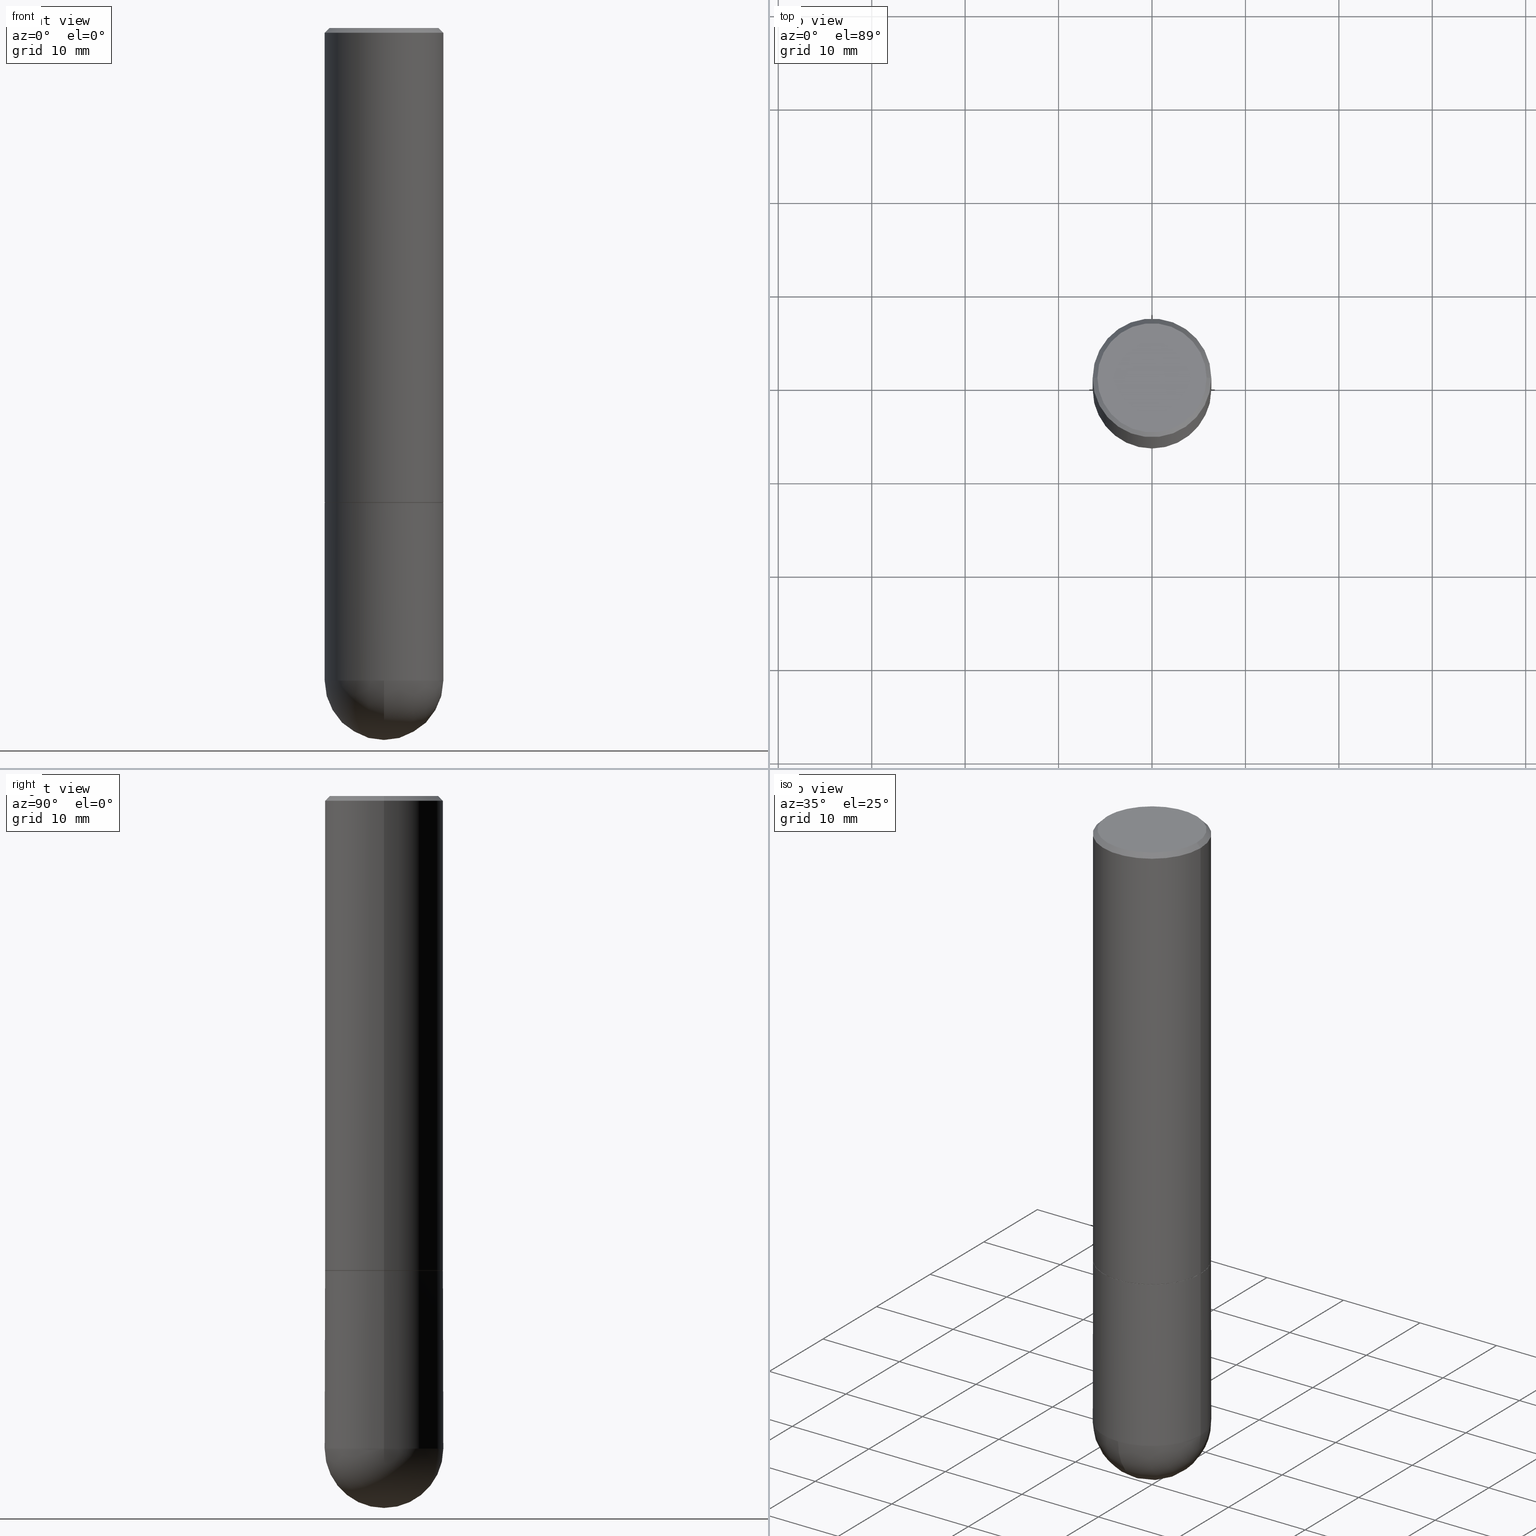
[diagram: canonical four-view strip — front | top / right | iso, engineering-drawing reading convention]
A machine part, canonical four-view strip (front | top / right | iso — engineering-drawing reading convention). The complete STEP part file that produces these views, byte-faithful:
ISO-10303-21;
HEADER;
FILE_DESCRIPTION (( 'STEP AP203' ),
    '1' );
FILE_NAME ('34979.STEP',
    '2024-02-21T18:38:55',
    ( '' ),
    ( '' ),
    'SwSTEP 2.0',
    'SolidWorks 2023',
    '' );
FILE_SCHEMA (( 'CONFIG_CONTROL_DESIGN' ));
ENDSEC;

DATA;
#1 = EDGE_CURVE ( 'NONE', #34, #349, #31, .T. ) ;
#2 = ORIENTED_EDGE ( 'NONE', *, *, #259, .T. ) ;
#3 = CIRCLE ( 'NONE', #155, 0.2500000000000000000 ) ;
#4 = DATE_AND_TIME ( #294, #26 ) ;
#5 = ORIENTED_EDGE ( 'NONE', *, *, #76, .F. ) ;
#6 = EDGE_LOOP ( 'NONE', ( #29, #325, #299, #410 ) ) ;
#7 = EDGE_CURVE ( 'NONE', #353, #130, #346, .T. ) ;
#8 = ORIENTED_EDGE ( 'NONE', *, *, #62, .T. ) ;
#9 = CARTESIAN_POINT ( 'NONE',  ( 6.725039217009124520E-29, -9.601573681818649859E-15, -2.750000000000000000 ) ) ;
#10 = ORIENTED_EDGE ( 'NONE', *, *, #87, .T. ) ;
#11 = DIRECTION ( 'NONE',  ( 1.000000000000000000, -6.982962677686262766E-15, 0.000000000000000000 ) ) ;
#12 = ORIENTED_EDGE ( 'NONE', *, *, #326, .F. ) ;
#13 = CARTESIAN_POINT ( 'NONE',  ( 0.000000000000000000, 0.000000000000000000, 0.000000000000000000 ) ) ;
#14 = AXIS2_PLACEMENT_3D ( 'NONE', #141, #172, #329 ) ;
#15 = CIRCLE ( 'NONE', #372, 0.2500000000000000000 ) ;
#16 = LINE ( 'NONE', #343, #46 ) ;
#17 =( CONVERSION_BASED_UNIT ( 'INCH', #212 ) LENGTH_UNIT ( ) NAMED_UNIT ( #295 ) );
#18 = LINE ( 'NONE', #401, #145 ) ;
#19 = DIRECTION ( 'NONE',  ( -2.445468806185136597E-29, 3.491481338843145583E-15, 1.000000000000000000 ) ) ;
#20 = PLANE ( 'NONE',  #394 ) ;
#21 = VECTOR ( 'NONE', #179, 39.37007874015748143 ) ;
#22 = DIRECTION ( 'NONE',  ( 1.000000000000000000, -6.982962677686267499E-15, 4.875813741439101456E-29 ) ) ;
#23 = CARTESIAN_POINT ( 'NONE',  ( 4.890937612370273194E-29, -6.982962677686291165E-15, -2.000000000000000000 ) ) ;
#24 = ORIENTED_EDGE ( 'NONE', *, *, #411, .F. ) ;
#25 = CIRCLE ( 'NONE', #266, 0.2500000000000002776 ) ;
#26 = LOCAL_TIME ( 13, 38, 55.00000000000000000, #122 ) ;
#27 = ORIENTED_EDGE ( 'NONE', *, *, #221, .F. ) ;
#28 = APPROVAL_STATUS ( 'not_yet_approved' ) ;
#29 = ORIENTED_EDGE ( 'NONE', *, *, #110, .T. ) ;
#30 = PRODUCT_RELATED_PRODUCT_CATEGORY ( 'detail', '', ( #369 ) ) ;
#31 = CIRCLE ( 'NONE', #393, 0.2500000000000000000 ) ;
#32 = ORIENTED_EDGE ( 'NONE', *, *, #301, .F. ) ;
#33 = ORIENTED_EDGE ( 'NONE', *, *, #323, .F. ) ;
#34 = VERTEX_POINT ( 'NONE', #387 ) ;
#35 = DIRECTION ( 'NONE',  ( -2.445468806185136597E-29, 3.491481338843145583E-15, 1.000000000000000000 ) ) ;
#36 = EDGE_LOOP ( 'NONE', ( #292, #101, #61, #307 ) ) ;
#37 = ADVANCED_FACE ( 'NONE', ( #99 ), #252, .T. ) ;
#38 = ORIENTED_EDGE ( 'NONE', *, *, #201, .F. ) ;
#39 = DIRECTION ( 'NONE',  ( -2.445468806185136597E-29, 3.491481338843145583E-15, 1.000000000000000000 ) ) ;
#40 = DIRECTION ( 'NONE',  ( -2.445468806185136597E-29, 3.491481338843145583E-15, 1.000000000000000000 ) ) ;
#41 = CARTESIAN_POINT ( 'NONE',  ( 0.2500000000000002776, -8.725211865769017202E-15, -1.999000000000000110 ) ) ;
#42 = FACE_OUTER_BOUND ( 'NONE', #64, .T. ) ;
#43 = CARTESIAN_POINT ( 'NONE',  ( -0.2299999999999999267, 1.640996229256272519E-15, 5.122214988119358314E-17 ) ) ;
#44 = DIRECTION ( 'NONE',  ( -0.7071067811867165487, 7.493145998870964739E-15, 0.7071067811863784858 ) ) ;
#45 = DIRECTION ( 'NONE',  ( 1.000000000000000000, -6.982962677686266711E-15, 4.876176775795935793E-29 ) ) ;
#46 = VECTOR ( 'NONE', #366, 39.37007874015748143 ) ;
#47 = APPROVAL_STATUS ( 'not_yet_approved' ) ;
#48 = CYLINDRICAL_SURFACE ( 'NONE', #275, 0.2500000000000001110 ) ;
#49 = ADVANCED_FACE ( 'NONE', ( #254 ), #375, .F. ) ;
#50 = CARTESIAN_POINT ( 'NONE',  ( 4.890937612370273194E-29, -6.982962677686291165E-15, -2.000000000000000000 ) ) ;
#51 = SPHERICAL_SURFACE ( 'NONE', #190, 0.2500000000000001110 ) ;
#52 = DIRECTION ( 'NONE',  ( 0.000000000000000000, 0.000000000000000000, 1.000000000000000000 ) ) ;
#53 = UNCERTAINTY_MEASURE_WITH_UNIT (LENGTH_MEASURE( 1.000000000000000082E-05 ), #17, 'distance_accuracy_value', 'NONE');
#54 = AXIS2_PLACEMENT_3D ( 'NONE', #304, #133, #268 ) ;
#55 = ORIENTED_EDGE ( 'NONE', *, *, #173, .F. ) ;
#56 = APPLICATION_PROTOCOL_DEFINITION ( 'international standard', 'config_control_design', 1994, #193 ) ;
#57 = VERTEX_POINT ( 'NONE', #273 ) ;
#58 = ORIENTED_EDGE ( 'NONE', *, *, #65, .T. ) ;
#59 = AXIS2_PLACEMENT_3D ( 'NONE', #308, #39, #11 ) ;
#60 = CC_DESIGN_APPROVAL ( #337, ( #384 ) ) ;
#61 = ORIENTED_EDGE ( 'NONE', *, *, #302, .T. ) ;
#62 = EDGE_CURVE ( 'NONE', #120, #309, #204, .T. ) ;
#63 = EDGE_LOOP ( 'NONE', ( #97, #5 ) ) ;
#64 = EDGE_LOOP ( 'NONE', ( #228, #168, #10, #159, #129 ) ) ;
#65 = EDGE_CURVE ( 'NONE', #121, #130, #125, .T. ) ;
#66 = AXIS2_PLACEMENT_3D ( 'NONE', #247, #77, #80 ) ;
#67 = VERTEX_POINT ( 'NONE', #135 ) ;
#68 = DIRECTION ( 'NONE',  ( 2.438088387897960049E-29, -3.491481338843145188E-15, -1.000000000000000000 ) ) ;
#69 = DIRECTION ( 'NONE',  ( -1.000000000000000000, 7.105427357601001070E-15, -4.926315508542082329E-29 ) ) ;
#70 = DIRECTION ( 'NONE',  ( -1.000000000000000000, 6.982962677686266711E-15, 0.000000000000000000 ) ) ;
#71 = DIRECTION ( 'NONE',  ( -2.445468806185136597E-29, 3.491481338843145583E-15, 1.000000000000000000 ) ) ;
#72 = CIRCLE ( 'NONE', #116, 0.2500000000000000000 ) ;
#73 = DIRECTION ( 'NONE',  ( 1.000000000000000000, -6.982962677686267499E-15, 4.876176775795936353E-29 ) ) ;
#74 = APPROVAL_PERSON_ORGANIZATION ( #158, #337, #300 ) ;
#75 = CARTESIAN_POINT ( 'NONE',  ( -0.2500000000000000000, -6.515911340352222020E-15, -2.750000000000000000 ) ) ;
#76 = EDGE_CURVE ( 'NONE', #57, #137, #132, .T. ) ;
#77 = DIRECTION ( 'NONE',  ( 2.445468806185136597E-29, -3.491481338843145583E-15, -1.000000000000000000 ) ) ;
#78 = FACE_OUTER_BOUND ( 'NONE', #6, .T. ) ;
#79 = EDGE_CURVE ( 'NONE', #67, #229, #239, .T. ) ;
#80 = DIRECTION ( 'NONE',  ( -1.000000000000000000, 6.982962677686266711E-15, 0.000000000000000000 ) ) ;
#81 = AXIS2_PLACEMENT_3D ( 'NONE', #371, #406, #316 ) ;
#82 = CC_DESIGN_APPROVAL ( #378, ( #142 ) ) ;
#83 = CARTESIAN_POINT ( 'NONE',  ( 0.000000000000000000, 0.000000000000000000, 0.000000000000000000 ) ) ;
#84 = CC_DESIGN_PERSON_AND_ORGANIZATION_ASSIGNMENT ( #203, #237, ( #384 ) ) ;
#85 = ORIENTED_EDGE ( 'NONE', *, *, #173, .T. ) ;
#86 = EDGE_CURVE ( 'NONE', #353, #231, #350, .T. ) ;
#87 = EDGE_CURVE ( 'NONE', #231, #121, #72, .T. ) ;
#88 = VECTOR ( 'NONE', #143, 39.37007874015748143 ) ;
#89 = CC_DESIGN_DATE_AND_TIME_ASSIGNMENT ( #258, #322, ( #142 ) ) ;
#90 = ORIENTED_EDGE ( 'NONE', *, *, #7, .T. ) ;
#91 = PERSON_AND_ORGANIZATION_ROLE ( 'design_owner' ) ;
#92 = ADVANCED_FACE ( 'NONE', ( #207 ), #176, .T. ) ;
#93 = ADVANCED_FACE ( 'NONE', ( #131 ), #386, .T. ) ;
#94 = EDGE_LOOP ( 'NONE', ( #352, #235, #8, #32 ) ) ;
#95 = AXIS2_PLACEMENT_3D ( 'NONE', #174, #68, #271 ) ;
#96 = AXIS2_PLACEMENT_3D ( 'NONE', #246, #367, #153 ) ;
#97 = ORIENTED_EDGE ( 'NONE', *, *, #259, .F. ) ;
#98 = DIRECTION ( 'NONE',  ( -2.445468806185136597E-29, 3.491481338843145583E-15, 1.000000000000000000 ) ) ;
#99 = FACE_OUTER_BOUND ( 'NONE', #391, .T. ) ;
#100 = PLANE ( 'NONE',  #281 ) ;
#101 = ORIENTED_EDGE ( 'NONE', *, *, #201, .T. ) ;
#102 = AXIS2_PLACEMENT_3D ( 'NONE', #23, #338, #152 ) ;
#103 = DIRECTION ( 'NONE',  ( 1.000000000000000000, -6.982962677686266711E-15, 4.876176775795935793E-29 ) ) ;
#104 = CARTESIAN_POINT ( 'NONE',  ( 0.2500000000000001110, -1.745740669421567664E-15, 1.219044193948984649E-29 ) ) ;
#105 = FACE_OUTER_BOUND ( 'NONE', #303, .T. ) ;
#106 = FACE_OUTER_BOUND ( 'NONE', #63, .T. ) ;
#107 = CARTESIAN_POINT ( 'NONE',  ( -0.2500000000000000000, 1.776356839400250465E-15, -1.229733772563726445E-29 ) ) ;
#108 = LOCAL_TIME ( 13, 38, 55.00000000000000000, #146 ) ;
#109 = CARTESIAN_POINT ( 'NONE',  ( 6.725039217009124520E-29, -9.601573681818649859E-15, -2.750000000000000000 ) ) ;
#110 = EDGE_CURVE ( 'NONE', #120, #67, #25, .T. ) ;
#111 = DIRECTION ( 'NONE',  ( -2.445468806185136877E-29, 3.491481338843145188E-15, 1.000000000000000000 ) ) ;
#112 = DIRECTION ( 'NONE',  ( -2.445468806185136597E-29, 3.491481338843145583E-15, 1.000000000000000000 ) ) ;
#113 = SPHERICAL_SURFACE ( 'NONE', #81, 0.2500000000000001110 ) ;
#114 = APPROVAL_DATE_TIME ( #298, #185 ) ;
#115 = DIRECTION ( 'NONE',  ( 1.000000000000000000, -6.982962677686266711E-15, 0.000000000000000000 ) ) ;
#116 = AXIS2_PLACEMENT_3D ( 'NONE', #9, #71, #354 ) ;
#117 =( NAMED_UNIT ( * ) PLANE_ANGLE_UNIT ( ) SI_UNIT ( $, .RADIAN. ) );
#118 = AXIS2_PLACEMENT_3D ( 'NONE', #148, #283, #215 ) ;
#119 = PERSON_AND_ORGANIZATION ( #381, #306 ) ;
#120 = VERTEX_POINT ( 'NONE', #41 ) ;
#121 = VERTEX_POINT ( 'NONE', #388 ) ;
#122 = COORDINATED_UNIVERSAL_TIME_OFFSET ( 5, 0, .BEHIND. ) ;
#123 = ORIENTED_EDGE ( 'NONE', *, *, #7, .F. ) ;
#124 = CALENDAR_DATE ( 2024, 21, 2 ) ;
#125 = CIRCLE ( 'NONE', #59, 0.2500000000000000000 ) ;
#126 = VECTOR ( 'NONE', #44, 39.37007874015748143 ) ;
#127 = APPROVAL_DATE_TIME ( #4, #337 ) ;
#128 = ADVANCED_FACE ( 'NONE', ( #361 ), #100, .F. ) ;
#129 = ORIENTED_EDGE ( 'NONE', *, *, #1, .F. ) ;
#130 = VERTEX_POINT ( 'NONE', #276 ) ;
#131 = FACE_OUTER_BOUND ( 'NONE', #166, .T. ) ;
#132 = CIRCLE ( 'NONE', #14, 0.2489999999999999991 ) ;
#133 = DIRECTION ( 'NONE',  ( 1.000000000000000000, -6.982962677686265922E-15, 4.883557194083112340E-29 ) ) ;
#134 = EDGE_LOOP ( 'NONE', ( #262, #171 ) ) ;
#135 = CARTESIAN_POINT ( 'NONE',  ( -0.2500000000000002220, -1.748293572161901516E-15, -1.999000000000000110 ) ) ;
#136 = ADVANCED_FACE ( 'NONE', ( #314 ), #51, .T. ) ;
#137 = VERTEX_POINT ( 'NONE', #403 ) ;
#138 = MANIFOLD_SOLID_BREP ( 'Body-Move/Copy2[2]', #243 ) ;
#139 = AXIS2_PLACEMENT_3D ( 'NONE', #233, #357, #70 ) ;
#140 = LOCAL_TIME ( 13, 38, 55.00000000000000000, #194 ) ;
#141 = CARTESIAN_POINT ( 'NONE',  ( 4.890937612370273194E-29, -6.982962677686291165E-15, -2.000000000000000000 ) ) ;
#142 = PRODUCT_DEFINITION ( 'UNKNOWN', '', #384, #250 ) ;
#143 = DIRECTION ( 'NONE',  ( -0.7071067811865466846, 2.468850131082247989E-15, -0.7071067811865483499 ) ) ;
#144 = CARTESIAN_POINT ( 'NONE',  ( 0.2299999999999999267, -1.681434332853598617E-15, 5.122214988121642930E-17 ) ) ;
#145 = VECTOR ( 'NONE', #111, 39.37007874015748143 ) ;
#146 = COORDINATED_UNIVERSAL_TIME_OFFSET ( 5, 0, .BEHIND. ) ;
#147 = CARTESIAN_POINT ( 'NONE',  ( 4.890937612370273194E-29, -6.982962677686291165E-15, -2.000000000000000000 ) ) ;
#148 = CARTESIAN_POINT ( 'NONE',  ( -1.252621697202263706E-45, 1.788411804456536750E-31, 5.122214988120493535E-17 ) ) ;
#149 = DIRECTION ( 'NONE',  ( -2.445468806185136597E-29, 3.491481338843145583E-15, 1.000000000000000000 ) ) ;
#150 = LINE ( 'NONE', #222, #126 ) ;
#151 = CC_DESIGN_PERSON_AND_ORGANIZATION_ASSIGNMENT ( #160, #165, ( #142 ) ) ;
#152 = DIRECTION ( 'NONE',  ( 1.000000000000000000, -6.982962677686266711E-15, 0.000000000000000000 ) ) ;
#153 = DIRECTION ( 'NONE',  ( 1.000000000000000000, -6.982962677686262766E-15, 0.000000000000000000 ) ) ;
#154 = CLOSED_SHELL ( 'NONE', ( #93, #136, #392, #49, #263 ) ) ;
#155 = AXIS2_PLACEMENT_3D ( 'NONE', #241, #245, #115 ) ;
#156 = ORIENTED_EDGE ( 'NONE', *, *, #76, .T. ) ;
#157 = VERTEX_POINT ( 'NONE', #43 ) ;
#158 = PERSON_AND_ORGANIZATION ( #381, #306 ) ;
#159 = ORIENTED_EDGE ( 'NONE', *, *, #170, .T. ) ;
#160 = PERSON_AND_ORGANIZATION ( #381, #306 ) ;
#161 = APPROVAL_DATE_TIME ( #261, #378 ) ;
#162 = AXIS2_PLACEMENT_3D ( 'NONE', #109, #249, #217 ) ;
#163 = COORDINATED_UNIVERSAL_TIME_OFFSET ( 5, 0, .BEHIND. ) ;
#164 = EDGE_LOOP ( 'NONE', ( #123, #348, #169, #33 ) ) ;
#165 = PERSON_AND_ORGANIZATION_ROLE ( 'creator' ) ;
#166 = EDGE_LOOP ( 'NONE', ( #408, #333, #27, #327, #58 ) ) ;
#167 = EDGE_CURVE ( 'NONE', #157, #229, #363, .T. ) ;
#168 = ORIENTED_EDGE ( 'NONE', *, *, #395, .T. ) ;
#169 = ORIENTED_EDGE ( 'NONE', *, *, #395, .F. ) ;
#170 = EDGE_CURVE ( 'NONE', #121, #349, #18, .T. ) ;
#171 = ORIENTED_EDGE ( 'NONE', *, *, #284, .T. ) ;
#172 = DIRECTION ( 'NONE',  ( -2.445468806185136597E-29, 3.491481338843145583E-15, 1.000000000000000000 ) ) ;
#173 = EDGE_CURVE ( 'NONE', #137, #120, #16, .T. ) ;
#174 = CARTESIAN_POINT ( 'NONE',  ( 1.745740669421615390E-15, 0.2499999999999930334, -2.000000000000000888 ) ) ;
#175 = EDGE_CURVE ( 'NONE', #328, #34, #397, .T. ) ;
#176 = CONICAL_SURFACE ( 'NONE', #400, 0.2489999999999999991, 0.7853981633976873100 ) ;
#177 = LOCAL_TIME ( 13, 38, 55.00000000000000000, #191 ) ;
#178 = CARTESIAN_POINT ( 'NONE',  ( 0.000000000000000000, 0.000000000000000000, 0.000000000000000000 ) ) ;
#179 = DIRECTION ( 'NONE',  ( 0.7071067811865466846, -7.319954787623252890E-15, -0.7071067811865483499 ) ) ;
#180 = FACE_OUTER_BOUND ( 'NONE', #223, .T. ) ;
#181 = AXIS2_PLACEMENT_3D ( 'NONE', #147, #405, #187 ) ;
#182 = SECURITY_CLASSIFICATION_LEVEL ( 'unclassified' ) ;
#183 = CARTESIAN_POINT ( 'NONE',  ( -1.252621697202263706E-45, 1.788411804456536750E-31, 5.122214988120493535E-17 ) ) ;
#184 = CIRCLE ( 'NONE', #118, 0.2299999999999999267 ) ;
#185 = APPROVAL ( #47, 'UNSPECIFIED' ) ;
#186 = DIRECTION ( 'NONE',  ( -2.438088387897960049E-29, 3.491481338843145188E-15, 1.000000000000000000 ) ) ;
#187 = DIRECTION ( 'NONE',  ( 1.000000000000000000, -6.982962677686266711E-15, 0.000000000000000000 ) ) ;
#188 = ADVANCED_FACE ( 'NONE', ( #78 ), #373, .T. ) ;
#189 = DIRECTION ( 'NONE',  ( 6.982962677686265922E-15, 1.000000000000000000, -4.370956789862818783E-15 ) ) ;
#190 = AXIS2_PLACEMENT_3D ( 'NONE', #282, #278, #189 ) ;
#191 = COORDINATED_UNIVERSAL_TIME_OFFSET ( 5, 0, .BEHIND. ) ;
#192 = AXIS2_PLACEMENT_3D ( 'NONE', #83, #19, #45 ) ;
#193 = APPLICATION_CONTEXT ( 'configuration controlled 3d designs of mechanical parts and assemblies' ) ;
#194 = COORDINATED_UNIVERSAL_TIME_OFFSET ( 5, 0, .BEHIND. ) ;
#195 = APPLICATION_PROTOCOL_DEFINITION ( 'international standard', 'config_control_design', 1994, #359 ) ;
#196 = VECTOR ( 'NONE', #199, 39.37007874015748143 ) ;
#197 = VERTEX_POINT ( 'NONE', #144 ) ;
#198 = EDGE_LOOP ( 'NONE', ( #272, #257 ) ) ;
#199 = DIRECTION ( 'NONE',  ( -2.445468806185136877E-29, 3.491481338843145188E-15, 1.000000000000000000 ) ) ;
#200 = ORIENTED_EDGE ( 'NONE', *, *, #65, .F. ) ;
#201 = EDGE_CURVE ( 'NONE', #197, #309, #370, .T. ) ;
#202 = ORIENTED_EDGE ( 'NONE', *, *, #326, .T. ) ;
#203 = PERSON_AND_ORGANIZATION ( #381, #306 ) ;
#204 = LINE ( 'NONE', #104, #196 ) ;
#205 = ADVANCED_FACE ( 'NONE', ( #105 ), #358, .T. ) ;
#206 = CARTESIAN_POINT ( 'NONE',  ( 4.890937612370273194E-29, -6.982962677686291165E-15, -2.000000000000000000 ) ) ;
#207 = FACE_OUTER_BOUND ( 'NONE', #321, .T. ) ;
#208 = CC_DESIGN_PERSON_AND_ORGANIZATION_ASSIGNMENT ( #277, #339, ( #384 ) ) ;
#209 = CC_DESIGN_SECURITY_CLASSIFICATION ( #312, ( #384 ) ) ;
#210 = CALENDAR_DATE ( 2024, 21, 2 ) ;
#211 = DIRECTION ( 'NONE',  ( -2.445468806185136597E-29, 3.491481338843145583E-15, 1.000000000000000000 ) ) ;
#212 = LENGTH_MEASURE_WITH_UNIT ( LENGTH_MEASURE( 0.02539999999999999897 ), #313 );
#213 = ADVANCED_FACE ( 'NONE', ( #320 ), #274, .T. ) ;
#214 = CARTESIAN_POINT ( 'NONE',  ( -0.2500000000000000000, 1.675911042644703577E-15, -0.02000000000000005593 ) ) ;
#215 = DIRECTION ( 'NONE',  ( 1.000000000000000000, -6.982962677686267499E-15, 4.875813741439101456E-29 ) ) ;
#216 = CARTESIAN_POINT ( 'NONE',  ( 0.000000000000000000, 0.000000000000000000, 0.000000000000000000 ) ) ;
#217 = DIRECTION ( 'NONE',  ( 1.000000000000000000, -6.982962677686262766E-15, 0.000000000000000000 ) ) ;
#218 =( GEOMETRIC_REPRESENTATION_CONTEXT ( 3 ) GLOBAL_UNCERTAINTY_ASSIGNED_CONTEXT ( ( #53 ) ) GLOBAL_UNIT_ASSIGNED_CONTEXT ( ( #17, #117, #374 ) ) REPRESENTATION_CONTEXT ( 'NONE', 'WORKASPACE' ) );
#219 = PRODUCT_DEFINITION_SHAPE ( 'NONE', 'NONE',  #142 ) ;
#220 = DIRECTION ( 'NONE',  ( -2.445468806185136597E-29, 3.491481338843145583E-15, 1.000000000000000000 ) ) ;
#221 = EDGE_CURVE ( 'NONE', #349, #34, #3, .T. ) ;
#222 = CARTESIAN_POINT ( 'NONE',  ( -0.2489999999999999991, -5.213711265643641709E-15, -2.000000000000000000 ) ) ;
#223 = EDGE_LOOP ( 'NONE', ( #330, #90, #200, #380 ) ) ;
#224 = MECHANICAL_CONTEXT ( 'NONE', #359, 'mechanical' ) ;
#225 = CARTESIAN_POINT ( 'NONE',  ( 0.000000000000000000, 0.000000000000000000, 0.000000000000000000 ) ) ;
#226 = APPROVAL_PERSON_ORGANIZATION ( #402, #185, #319 ) ;
#227 = ORIENTED_EDGE ( 'NONE', *, *, #382, .F. ) ;
#228 = ORIENTED_EDGE ( 'NONE', *, *, #175, .F. ) ;
#229 = VERTEX_POINT ( 'NONE', #214 ) ;
#230 = AXIS2_PLACEMENT_3D ( 'NONE', #183, #318, #22 ) ;
#231 = VERTEX_POINT ( 'NONE', #340 ) ;
#232 = CARTESIAN_POINT ( 'NONE',  ( 1.606081415867840870E-15, 0.2299999999999999267, -7.774296329933208332E-16 ) ) ;
#233 = CARTESIAN_POINT ( 'NONE',  ( 4.890937612370287172E-31, -6.982962677686310098E-17, -0.02000000000000005593 ) ) ;
#234 = DIRECTION ( 'NONE',  ( 2.438088387897960049E-29, -3.491481338843145188E-15, -1.000000000000000000 ) ) ;
#235 = ORIENTED_EDGE ( 'NONE', *, *, #382, .T. ) ;
#236 = LOCAL_TIME ( 13, 38, 55.00000000000000000, #163 ) ;
#237 = PERSON_AND_ORGANIZATION_ROLE ( 'creator' ) ;
#238 = CARTESIAN_POINT ( 'NONE',  ( 4.888492143564088712E-29, -6.979471196347448158E-15, -1.999000000000000110 ) ) ;
#239 = LINE ( 'NONE', #331, #336 ) ;
#240 = PERSON_AND_ORGANIZATION_ROLE ( 'classification_officer' ) ;
#241 = CARTESIAN_POINT ( 'NONE',  ( 4.890937612370273754E-29, -6.982962677686291954E-15, -2.000000000000000444 ) ) ;
#242 = DIRECTION ( 'NONE',  ( 1.000000000000000000, -6.982962677686265922E-15, 4.876176775795935793E-29 ) ) ;
#243 = CLOSED_SHELL ( 'NONE', ( #205, #188, #213, #37, #251, #92, #347, #128 ) ) ;
#244 = CIRCLE ( 'NONE', #230, 0.2299999999999999267 ) ;
#245 = DIRECTION ( 'NONE',  ( -2.445468806185136597E-29, 3.491481338843145583E-15, 1.000000000000000000 ) ) ;
#246 = CARTESIAN_POINT ( 'NONE',  ( 6.725039217009124520E-29, -9.601573681818649859E-15, -2.750000000000000000 ) ) ;
#247 = CARTESIAN_POINT ( 'NONE',  ( 4.890937612370287172E-31, -6.982962677686310098E-17, -0.02000000000000005593 ) ) ;
#248 = CARTESIAN_POINT ( 'NONE',  ( 4.890937612370287172E-31, -6.982962677686310098E-17, -0.02000000000000005593 ) ) ;
#249 = DIRECTION ( 'NONE',  ( -2.445468806185136597E-29, 3.491481338843145583E-15, 1.000000000000000000 ) ) ;
#250 = DESIGN_CONTEXT ( 'detailed design', #193, 'design' ) ;
#251 = ADVANCED_FACE ( 'NONE', ( #368 ), #48, .T. ) ;
#252 = CONICAL_SURFACE ( 'NONE', #139, 0.2500000000000000000, 0.7853981633974471688 ) ;
#253 = CARTESIAN_POINT ( 'NONE',  ( 4.890937612370287172E-31, -6.982962677686310098E-17, -0.02000000000000005593 ) ) ;
#254 = FACE_OUTER_BOUND ( 'NONE', #198, .T. ) ;
#255 = CALENDAR_DATE ( 2024, 21, 2 ) ;
#256 = AXIS2_PLACEMENT_3D ( 'NONE', #178, #112, #73 ) ;
#257 = ORIENTED_EDGE ( 'NONE', *, *, #1, .T. ) ;
#258 = DATE_AND_TIME ( #296, #177 ) ;
#259 = EDGE_CURVE ( 'NONE', #137, #57, #342, .T. ) ;
#260 = CC_DESIGN_PERSON_AND_ORGANIZATION_ASSIGNMENT ( #396, #240, ( #312 ) ) ;
#261 = DATE_AND_TIME ( #124, #140 ) ;
#262 = ORIENTED_EDGE ( 'NONE', *, *, #411, .T. ) ;
#263 = ADVANCED_FACE ( 'NONE', ( #42 ), #315, .T. ) ;
#264 = ORIENTED_EDGE ( 'NONE', *, *, #110, .F. ) ;
#265 = DIRECTION ( 'NONE',  ( -2.445468806185136877E-29, 3.491481338843145188E-15, 1.000000000000000000 ) ) ;
#266 = AXIS2_PLACEMENT_3D ( 'NONE', #238, #40, #335 ) ;
#267 = AXIS2_PLACEMENT_3D ( 'NONE', #398, #364, #404 ) ;
#268 = DIRECTION ( 'NONE',  ( 6.982962677686266711E-15, 1.000000000000000000, 0.000000000000000000 ) ) ;
#269 = DIRECTION ( 'NONE',  ( 1.000000000000000000, -6.982962677686266711E-15, 0.000000000000000000 ) ) ;
#270 = CARTESIAN_POINT ( 'NONE',  ( 4.890937612370273754E-29, -6.982962677686291954E-15, -2.000000000000000444 ) ) ;
#271 = DIRECTION ( 'NONE',  ( -1.000000000000000000, 6.982962677686265922E-15, -4.876176775795935793E-29 ) ) ;
#272 = ORIENTED_EDGE ( 'NONE', *, *, #221, .T. ) ;
#273 = CARTESIAN_POINT ( 'NONE',  ( -0.2489999999999999991, -5.208412811295418518E-15, -2.000000000000000000 ) ) ;
#274 = CONICAL_SURFACE ( 'NONE', #66, 0.2500000000000000000, 0.7853981633974471688 ) ;
#275 = AXIS2_PLACEMENT_3D ( 'NONE', #216, #211, #341 ) ;
#276 = CARTESIAN_POINT ( 'NONE',  ( 1.745740669421632745E-15, 0.2499999999999902300, -2.750000000000000888 ) ) ;
#277 = PERSON_AND_ORGANIZATION ( #381, #306 ) ;
#278 = DIRECTION ( 'NONE',  ( -1.000000000000000000, 6.982962677686265922E-15, -4.883557194083113462E-29 ) ) ;
#279 = DATE_TIME_ROLE ( 'classification_date' ) ;
#280 = CARTESIAN_POINT ( 'NONE',  ( 0.2500000000000000000, -1.784954126219746189E-15, -0.02000000000000005593 ) ) ;
#281 = AXIS2_PLACEMENT_3D ( 'NONE', #232, #234, #311 ) ;
#282 = CARTESIAN_POINT ( 'NONE',  ( 6.393919439095240515E-29, -1.007575604995870173E-14, -2.750000000000000444 ) ) ;
#283 = DIRECTION ( 'NONE',  ( -2.445468806185136597E-29, 3.491481338843145583E-15, 1.000000000000000000 ) ) ;
#284 = EDGE_CURVE ( 'NONE', #197, #157, #244, .T. ) ;
#285 = DIRECTION ( 'NONE',  ( 1.000000000000000000, -6.982962677686266711E-15, 0.000000000000000000 ) ) ;
#286 = CARTESIAN_POINT ( 'NONE',  ( 7.015976219256266741E-29, -1.093331829968014633E-14, -3.000000000000000888 ) ) ;
#287 = MANIFOLD_SOLID_BREP ( 'Body-Move/Copy2[1]', #154 ) ;
#288 = DIRECTION ( 'NONE',  ( -2.445468806185136877E-29, 3.491481338843145188E-15, 1.000000000000000000 ) ) ;
#289 = CC_DESIGN_PERSON_AND_ORGANIZATION_ASSIGNMENT ( #409, #91, ( #369 ) ) ;
#290 = CIRCLE ( 'NONE', #96, 0.2500000000000000000 ) ;
#291 = DIRECTION ( 'NONE',  ( 1.000000000000000000, 0.000000000000000000, 0.000000000000000000 ) ) ;
#292 = ORIENTED_EDGE ( 'NONE', *, *, #284, .F. ) ;
#293 = ORIENTED_EDGE ( 'NONE', *, *, #301, .T. ) ;
#294 = CALENDAR_DATE ( 2024, 21, 2 ) ;
#295 = DIMENSIONAL_EXPONENTS ( 1.000000000000000000, 0.000000000000000000, 0.000000000000000000, 0.000000000000000000, 0.000000000000000000, 0.000000000000000000, 0.000000000000000000 ) ;
#296 = CALENDAR_DATE ( 2024, 21, 2 ) ;
#297 = CIRCLE ( 'NONE', #332, 0.2500000000000000000 ) ;
#298 = DATE_AND_TIME ( #255, #236 ) ;
#299 = ORIENTED_EDGE ( 'NONE', *, *, #302, .F. ) ;
#300 = APPROVAL_ROLE ( '' ) ;
#301 = EDGE_CURVE ( 'NONE', #229, #309, #15, .T. ) ;
#302 = EDGE_CURVE ( 'NONE', #309, #229, #297, .T. ) ;
#303 = EDGE_LOOP ( 'NONE', ( #2, #202, #264, #55 ) ) ;
#304 = CARTESIAN_POINT ( 'NONE',  ( 6.393919439095240515E-29, -1.007575604995870173E-14, -2.750000000000000444 ) ) ;
#305 = AXIS2_PLACEMENT_3D ( 'NONE', #13, #98, #103 ) ;
#306 = ORGANIZATION ( 'UNSPECIFIED', 'UNSPECIFIED', '' ) ;
#307 = ORIENTED_EDGE ( 'NONE', *, *, #167, .F. ) ;
#308 = CARTESIAN_POINT ( 'NONE',  ( 6.725039217009124520E-29, -9.601573681818649859E-15, -2.750000000000000000 ) ) ;
#309 = VERTEX_POINT ( 'NONE', #390 ) ;
#310 = DIRECTION ( 'NONE',  ( -7.105427357601001859E-15, -1.000000000000000000, 0.000000000000000000 ) ) ;
#311 = DIRECTION ( 'NONE',  ( -1.000000000000000000, 6.982962677686265922E-15, -4.876176775795935793E-29 ) ) ;
#312 = SECURITY_CLASSIFICATION ( '', '', #182 ) ;
#313 =( LENGTH_UNIT ( ) NAMED_UNIT ( * ) SI_UNIT ( $, .METRE. ) );
#314 = FACE_OUTER_BOUND ( 'NONE', #164, .T. ) ;
#315 = CYLINDRICAL_SURFACE ( 'NONE', #192, 0.2500000000000000000 ) ;
#316 = DIRECTION ( 'NONE',  ( 6.982962677686265922E-15, 1.000000000000000000, -4.370956789862818783E-15 ) ) ;
#317 = DATE_AND_TIME ( #210, #108 ) ;
#318 = DIRECTION ( 'NONE',  ( -2.445468806185136597E-29, 3.491481338843145583E-15, 1.000000000000000000 ) ) ;
#319 = APPROVAL_ROLE ( '' ) ;
#320 = FACE_OUTER_BOUND ( 'NONE', #36, .T. ) ;
#321 = EDGE_LOOP ( 'NONE', ( #12, #156, #85, #227 ) ) ;
#322 = DATE_TIME_ROLE ( 'creation_date' ) ;
#323 = EDGE_CURVE ( 'NONE', #130, #328, #365, .T. ) ;
#324 = APPROVAL_PERSON_ORGANIZATION ( #119, #378, #377 ) ;
#325 = ORIENTED_EDGE ( 'NONE', *, *, #79, .T. ) ;
#326 = EDGE_CURVE ( 'NONE', #57, #67, #150, .T. ) ;
#327 = ORIENTED_EDGE ( 'NONE', *, *, #170, .F. ) ;
#328 = VERTEX_POINT ( 'NONE', #75 ) ;
#329 = DIRECTION ( 'NONE',  ( 1.000000000000000000, -6.982962677686266711E-15, 0.000000000000000000 ) ) ;
#330 = ORIENTED_EDGE ( 'NONE', *, *, #86, .F. ) ;
#331 = CARTESIAN_POINT ( 'NONE',  ( -0.2500000000000001110, 1.776356839400251254E-15, -1.229733772563727146E-29 ) ) ;
#332 = AXIS2_PLACEMENT_3D ( 'NONE', #248, #220, #344 ) ;
#333 = ORIENTED_EDGE ( 'NONE', *, *, #175, .T. ) ;
#334 = ADVANCED_BREP_SHAPE_REPRESENTATION ( '34979', ( #287, #138, #351 ), #218 ) ;
#335 = DIRECTION ( 'NONE',  ( 1.000000000000000000, -6.982962677686266711E-15, 0.000000000000000000 ) ) ;
#336 = VECTOR ( 'NONE', #265, 39.37007874015748143 ) ;
#337 = APPROVAL ( #412, 'UNSPECIFIED' ) ;
#338 = DIRECTION ( 'NONE',  ( -2.445468806185136597E-29, 3.491481338843145583E-15, 1.000000000000000000 ) ) ;
#339 = PERSON_AND_ORGANIZATION_ROLE ( 'design_supplier' ) ;
#340 = CARTESIAN_POINT ( 'NONE',  ( -1.776356839400184989E-15, -0.2500000000000098810, -2.749999999999998668 ) ) ;
#341 = DIRECTION ( 'NONE',  ( 1.000000000000000000, -6.982962677686267499E-15, 4.876176775795936353E-29 ) ) ;
#342 = CIRCLE ( 'NONE', #102, 0.2489999999999999991 ) ;
#343 = CARTESIAN_POINT ( 'NONE',  ( 0.2489999999999999991, -8.721720384430171040E-15, -2.000000000000000000 ) ) ;
#344 = DIRECTION ( 'NONE',  ( 1.000000000000000000, -6.982962677686266711E-15, 0.000000000000000000 ) ) ;
#345 = CARTESIAN_POINT ( 'NONE',  ( 0.2500000000000000000, -8.728703347107858632E-15, -2.000000000000000444 ) ) ;
#346 = CIRCLE ( 'NONE', #54, 0.2500000000000001110 ) ;
#347 = ADVANCED_FACE ( 'NONE', ( #106 ), #20, .F. ) ;
#348 = ORIENTED_EDGE ( 'NONE', *, *, #86, .T. ) ;
#349 = VERTEX_POINT ( 'NONE', #345 ) ;
#350 = CIRCLE ( 'NONE', #383, 0.2500000000000001110 ) ;
#351 = AXIS2_PLACEMENT_3D ( 'NONE', #225, #52, #291 ) ;
#352 = ORIENTED_EDGE ( 'NONE', *, *, #79, .F. ) ;
#353 = VERTEX_POINT ( 'NONE', #286 ) ;
#354 = DIRECTION ( 'NONE',  ( 1.000000000000000000, -6.982962677686262766E-15, 0.000000000000000000 ) ) ;
#355 = DIRECTION ( 'NONE',  ( -2.445468806185136597E-29, 3.491481338843145583E-15, 1.000000000000000000 ) ) ;
#356 = CC_DESIGN_DATE_AND_TIME_ASSIGNMENT ( #317, #279, ( #312 ) ) ;
#357 = DIRECTION ( 'NONE',  ( 2.445468806185136597E-29, -3.491481338843145583E-15, -1.000000000000000000 ) ) ;
#358 = CONICAL_SURFACE ( 'NONE', #181, 0.2489999999999999991, 0.7853981633976873100 ) ;
#359 = APPLICATION_CONTEXT ( 'configuration controlled 3d designs of mechanical parts and assemblies' ) ;
#360 = CIRCLE ( 'NONE', #267, 0.2500000000000002776 ) ;
#361 = FACE_OUTER_BOUND ( 'NONE', #134, .T. ) ;
#362 = CARTESIAN_POINT ( 'NONE',  ( 6.393919439095240515E-29, -1.007575604995870173E-14, -2.750000000000000444 ) ) ;
#363 = LINE ( 'NONE', #399, #88 ) ;
#364 = DIRECTION ( 'NONE',  ( -2.445468806185136597E-29, 3.491481338843145583E-15, 1.000000000000000000 ) ) ;
#365 = CIRCLE ( 'NONE', #162, 0.2500000000000000000 ) ;
#366 = DIRECTION ( 'NONE',  ( 0.7071067811867165487, -2.468850131084027659E-15, 0.7071067811863784858 ) ) ;
#367 = DIRECTION ( 'NONE',  ( -2.445468806185136597E-29, 3.491481338843145583E-15, 1.000000000000000000 ) ) ;
#368 = FACE_OUTER_BOUND ( 'NONE', #94, .T. ) ;
#369 = PRODUCT ( '34979', '34979', '', ( #224 ) ) ;
#370 = LINE ( 'NONE', #280, #21 ) ;
#371 = CARTESIAN_POINT ( 'NONE',  ( 6.393919439095240515E-29, -1.007575604995870173E-14, -2.750000000000000444 ) ) ;
#372 = AXIS2_PLACEMENT_3D ( 'NONE', #253, #149, #285 ) ;
#373 = CYLINDRICAL_SURFACE ( 'NONE', #256, 0.2500000000000001110 ) ;
#374 =( NAMED_UNIT ( * ) SI_UNIT ( $, .STERADIAN. ) SOLID_ANGLE_UNIT ( ) );
#375 = PLANE ( 'NONE',  #95 ) ;
#376 = SHAPE_DEFINITION_REPRESENTATION ( #219, #334 ) ;
#377 = APPROVAL_ROLE ( '' ) ;
#378 = APPROVAL ( #28, 'UNSPECIFIED' ) ;
#379 = VECTOR ( 'NONE', #288, 39.37007874015748143 ) ;
#380 = ORIENTED_EDGE ( 'NONE', *, *, #87, .F. ) ;
#381 = PERSON ( 'UNSPECIFIED', 'UNSPECIFIED', 'UNSPECIFIED', ('UNSPECIFIED'), ('UNSPECIFIED'), ('UNSPECIFIED') ) ;
#382 = EDGE_CURVE ( 'NONE', #67, #120, #360, .T. ) ;
#383 = AXIS2_PLACEMENT_3D ( 'NONE', #362, #69, #310 ) ;
#384 = PRODUCT_DEFINITION_FORMATION_WITH_SPECIFIED_SOURCE ( 'ANY', '', #369, .NOT_KNOWN. ) ;
#385 = ORIENTED_EDGE ( 'NONE', *, *, #167, .T. ) ;
#386 = CYLINDRICAL_SURFACE ( 'NONE', #305, 0.2500000000000000000 ) ;
#387 = CARTESIAN_POINT ( 'NONE',  ( -0.2500000000000000000, -6.515911340352220442E-15, -2.000000000000000444 ) ) ;
#388 = CARTESIAN_POINT ( 'NONE',  ( 0.2500000000000000000, -1.003800884917403995E-14, -2.750000000000000000 ) ) ;
#389 = DIRECTION ( 'NONE',  ( 1.000000000000000000, -6.982962677686266711E-15, 0.000000000000000000 ) ) ;
#390 = CARTESIAN_POINT ( 'NONE',  ( 0.2500000000000000000, -1.784954126219746189E-15, -0.02000000000000005593 ) ) ;
#391 = EDGE_LOOP ( 'NONE', ( #38, #24, #385, #293 ) ) ;
#392 = ADVANCED_FACE ( 'NONE', ( #180 ), #113, .T. ) ;
#393 = AXIS2_PLACEMENT_3D ( 'NONE', #270, #355, #389 ) ;
#394 = AXIS2_PLACEMENT_3D ( 'NONE', #50, #186, #242 ) ;
#395 = EDGE_CURVE ( 'NONE', #328, #231, #290, .T. ) ;
#396 = PERSON_AND_ORGANIZATION ( #381, #306 ) ;
#397 = LINE ( 'NONE', #107, #379 ) ;
#398 = CARTESIAN_POINT ( 'NONE',  ( 4.888492143564088712E-29, -6.979471196347448158E-15, -1.999000000000000110 ) ) ;
#399 = CARTESIAN_POINT ( 'NONE',  ( -0.2500000000000000000, 1.675911042644703577E-15, -0.02000000000000005593 ) ) ;
#400 = AXIS2_PLACEMENT_3D ( 'NONE', #206, #35, #269 ) ;
#401 = CARTESIAN_POINT ( 'NONE',  ( 0.2500000000000000000, -1.745740669421566678E-15, 1.219044193948983948E-29 ) ) ;
#402 = PERSON_AND_ORGANIZATION ( #381, #306 ) ;
#403 = CARTESIAN_POINT ( 'NONE',  ( 0.2489999999999999991, -8.721720384430171040E-15, -2.000000000000000000 ) ) ;
#404 = DIRECTION ( 'NONE',  ( 1.000000000000000000, -6.982962677686266711E-15, 0.000000000000000000 ) ) ;
#405 = DIRECTION ( 'NONE',  ( -2.445468806185136597E-29, 3.491481338843145583E-15, 1.000000000000000000 ) ) ;
#406 = DIRECTION ( 'NONE',  ( -1.000000000000000000, 6.982962677686265922E-15, -4.883557194083113462E-29 ) ) ;
#407 = CC_DESIGN_APPROVAL ( #185, ( #312 ) ) ;
#408 = ORIENTED_EDGE ( 'NONE', *, *, #323, .T. ) ;
#409 = PERSON_AND_ORGANIZATION ( #381, #306 ) ;
#410 = ORIENTED_EDGE ( 'NONE', *, *, #62, .F. ) ;
#411 = EDGE_CURVE ( 'NONE', #157, #197, #184, .T. ) ;
#412 = APPROVAL_STATUS ( 'not_yet_approved' ) ;
ENDSEC;
END-ISO-10303-21;
